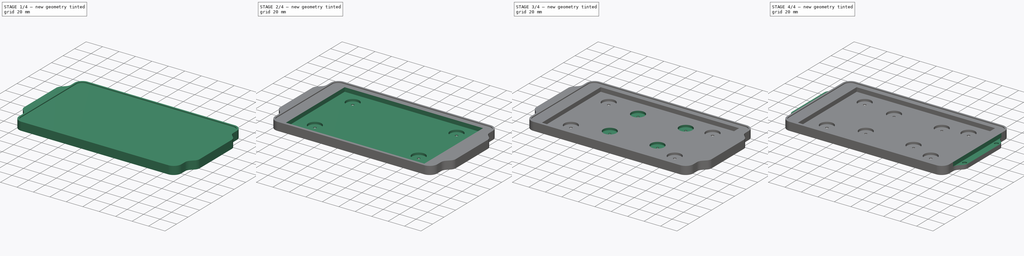
[diagram: build sequence overview — one tinted view per stage of 4, left to right]
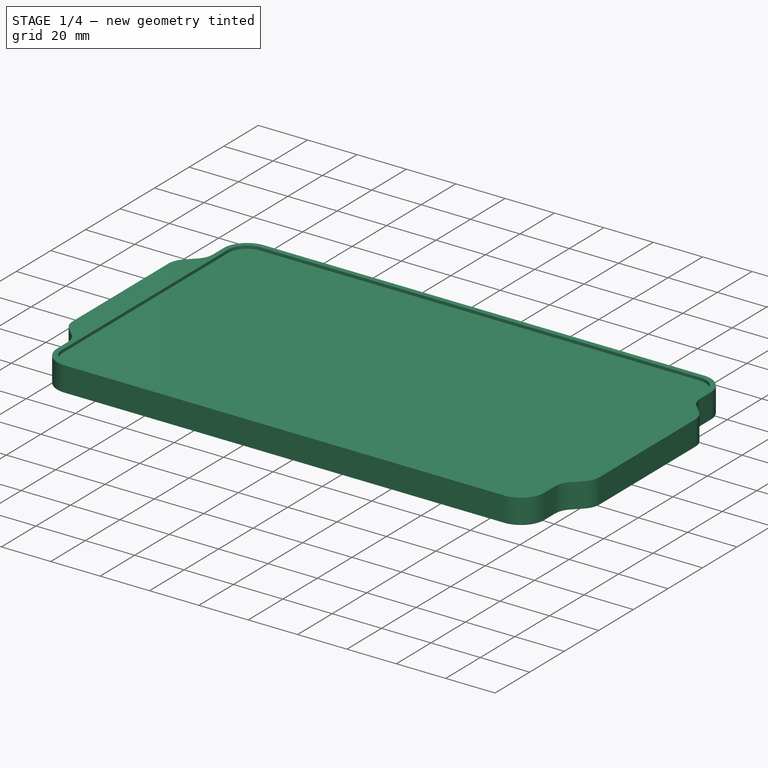
[diagram: stage 1 of 4 — iso view after this stage's code; geometry added in this stage tinted green]
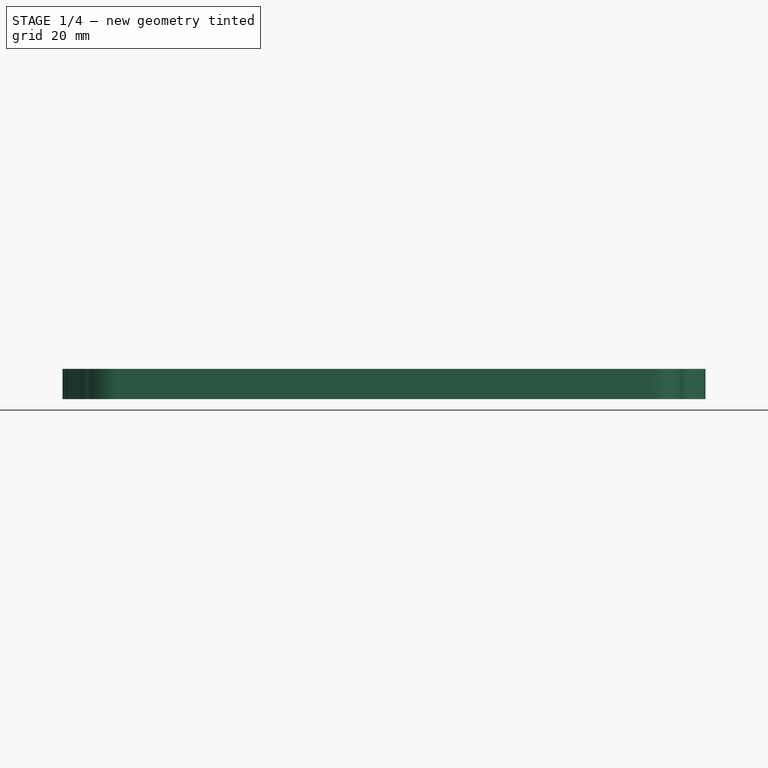
[diagram: stage 1 of 4 — front view after this stage's code; geometry added in this stage tinted green]
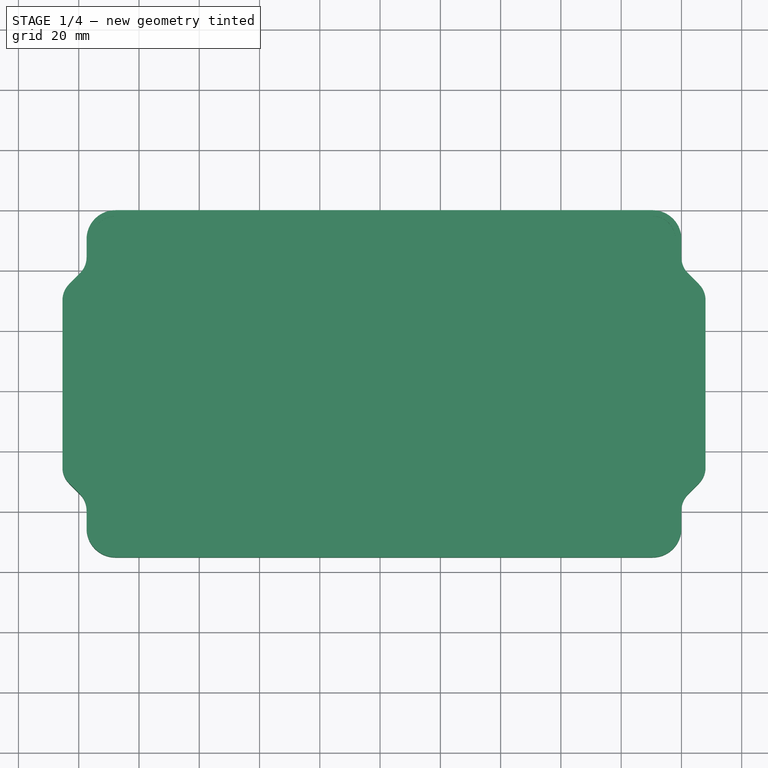
[diagram: stage 1 of 4 — top view after this stage's code; geometry added in this stage tinted green]
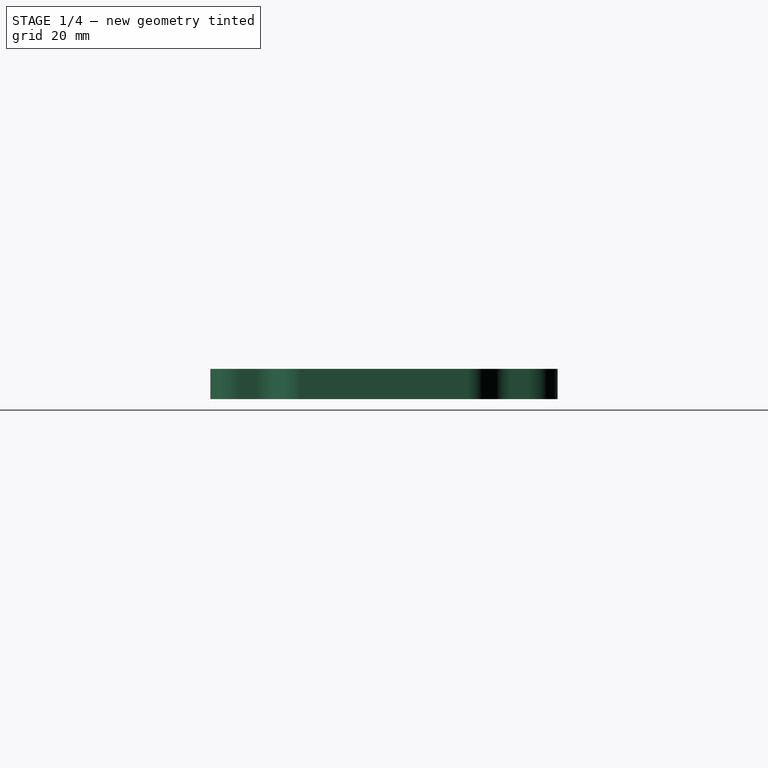
[diagram: stage 1 of 4 — right view after this stage's code; geometry added in this stage tinted green]
FCSTD DOCUMENT  (FreeCAD 0.20R29603 (Git))
Label: Support-Ecran7p-Rpi-Vissage
License: Public Domain
LicenseURL: http://en.wikipedia.org/wiki/Public_domain
objects: Sketcher::SketchObject×8, PartDesign::Pocket×4, PartDesign::LinearPattern×4, PartDesign::Hole×3, PartDesign::MultiTransform×2, PartDesign::Pad×1, PartDesign::Body×1
note: 31 computed .brp shape members not serialized (recipe doc carries the construction recipe); baked Part::Feature solids carry a one-line shape summary decoded from their .brp

FEATURE [Sketcher::SketchObject] Sketch
  FullyConstrained = true
  MapMode = 5
  Support = -> [XY_Plane]
  sketch-geometry (30):
    g0: ArcOfCircle CenterX=-187.8 CenterY=-9.6 CenterZ=0 NormalX=0 NormalY=0 NormalZ=1 AngleXU=0 Radius=9.6 StartAngle=1.5708 EndAngle=3.14159
    g1: LineSegment StartX=-187.8 StartY=0 StartZ=0 EndX=-9.6 EndY=0 EndZ=0
    g2: ArcOfCircle CenterX=-9.6 CenterY=-9.6 CenterZ=0 NormalX=0 NormalY=0 NormalZ=1 AngleXU=0 Radius=9.6 StartAngle=1e-16 EndAngle=1.5708
    g3: ArcOfCircle CenterX=-9.6 CenterY=-105.6 CenterZ=0 NormalX=0 NormalY=0 NormalZ=1 AngleXU=0 Radius=9.6 StartAngle=4.71239 EndAngle=6.28319
    g4: LineSegment StartX=-9.6 StartY=-115.2 StartZ=0 EndX=-187.8 EndY=-115.2 EndZ=0
    g5: ArcOfCircle CenterX=-187.8 CenterY=-105.6 CenterZ=0 NormalX=0 NormalY=0 NormalZ=1 AngleXU=0 Radius=9.6 StartAngle=3.14159 EndAngle=4.71239
    g6: LineSegment StartX=-197.4 StartY=-9.6 StartZ=0 EndX=-197.4 EndY=-15.6 EndZ=0
    g7: LineSegment StartX=-199.626 StartY=-20.974 StartZ=0 EndX=-203.174 EndY=-24.522 EndZ=0
    g8: LineSegment StartX=-203.174 StartY=-90.678 StartZ=0 EndX=-199.626 EndY=-94.226 EndZ=0
    g9: LineSegment StartX=-197.4 StartY=-99.6 StartZ=0 EndX=-197.4 EndY=-105.6 EndZ=0
    g10: LineSegment StartX=0 StartY=-9.6 StartZ=0 EndX=0 EndY=-15.6 EndZ=0
    g11: LineSegment StartX=2.22599 StartY=-20.974 StartZ=0 EndX=5.77401 EndY=-24.522 EndZ=0
    g12: LineSegment StartX=8 StartY=-29.896 StartZ=0 EndX=8 EndY=-85.304 EndZ=0
    g13: LineSegment StartX=5.77401 StartY=-90.678 StartZ=0 EndX=2.22599 EndY=-94.226 EndZ=0
    g14: LineSegment StartX=0 StartY=-99.6 StartZ=0 EndX=0 EndY=-105.6 EndZ=0
    g15: ArcOfCircle CenterX=-205 CenterY=-15.6 CenterZ=0 NormalX=0 NormalY=0 NormalZ=1 AngleXU=0 Radius=7.6 StartAngle=5.49779 EndAngle=6.28319
    g16: GeomPoint X=-197.4 Y=-18.748 Z=0
    g17: ArcOfCircle CenterX=-205 CenterY=-99.6 CenterZ=0 NormalX=0 NormalY=0 NormalZ=1 AngleXU=0 Radius=7.6 StartAngle=0 EndAngle=0.785398
    g18: GeomPoint X=-197.4 Y=-96.452 Z=0
    g19: ArcOfCircle CenterX=-197.8 CenterY=-29.896 CenterZ=0 NormalX=0 NormalY=0 NormalZ=1 AngleXU=0 Radius=7.6 StartAngle=2.35619 EndAngle=3.14159
    g20: ArcOfCircle CenterX=-197.8 CenterY=-85.304 CenterZ=0 NormalX=0 NormalY=0 NormalZ=1 AngleXU=0 Radius=7.6 StartAngle=3.14159 EndAngle=3.92699
    g21: ArcOfCircle CenterX=7.6 CenterY=-15.6 CenterZ=0 NormalX=0 NormalY=0 NormalZ=1 AngleXU=0 Radius=7.6 StartAngle=3.14159 EndAngle=3.92699
    g22: GeomPoint X=0 Y=-18.748 Z=0
    g23: ArcOfCircle CenterX=7.6 CenterY=-99.6 CenterZ=0 NormalX=0 NormalY=0 NormalZ=1 AngleXU=0 Radius=7.6 StartAngle=2.35619 EndAngle=3.14159
    g24: GeomPoint X=0 Y=-96.452 Z=0
    g25: ArcOfCircle CenterX=0.4 CenterY=-29.896 CenterZ=0 NormalX=0 NormalY=0 NormalZ=1 AngleXU=0 Radius=7.6 StartAngle=0 EndAngle=0.785398
    g26: GeomPoint X=8 Y=-26.748 Z=0
    g27: ArcOfCircle CenterX=0.4 CenterY=-85.304 CenterZ=0 NormalX=0 NormalY=0 NormalZ=1 AngleXU=0 Radius=7.6 StartAngle=5.49779 EndAngle=6.28319
    g28: GeomPoint X=8 Y=-88.452 Z=0
    g29: LineSegment StartX=-205.4 StartY=-29.896 StartZ=0 EndX=-205.4 EndY=-85.304 EndZ=0
  constraints (72):
    c: Tangent(g0,g1) = 1.5708
    c: Tangent(g1,g2) = 1.5708
    c: Tangent(g3,g4) = 1.5708
    c: Tangent(g4,g5) = 1.5708
    c: Horizontal(g1)
    c: Horizontal(g4)
    c: Equal(g0,g2)
    c: Equal(g2,g3)
    c: Equal(g3,g5)
    c: Radius(g2) = 9.6
    c: DistanceY(g4,g0) = 115.2
    c: PointOnObject(g1,g-1)
    c: PointOnObject(g2,g-2)
    c: Tangent(g0,g6) = -1.5708
    c: Vertical(g9)
    c: Vertical(g6)
    c: Vertical(g18,g16)
    c: Tangent(g9,g5) = -1.5708
    c: Tangent(g2,g10) = 1.5708
    c: Vertical(g12)
    c: Vertical(g14)
    c: Tangent(g14,g3) = 1.5708
    c: Vertical(g10)
    c: DistanceX(g0,g2) = 197.4
    c: Vertical(g3,g2)
    c: PointOnObject(g16,g6)
    c: PointOnObject(g16,g7)
    c: Tangent(g6,g15) = 1.5708
    c: Tangent(g7,g15) = 1.5708
    c: DistanceY(g6,g6) = 6
    c: PointOnObject(g18,g8)
    c: PointOnObject(g18,g9)
    c: Tangent(g8,g17) = 1.5708
    c: Tangent(g9,g17) = 1.5708
    c: DistanceY(g9,g9) = 6
    c: Tangent(g7,g19) = -1.5708
    c: Tangent(g8,g20) = -1.5708
    c: PointOnObject(g22,g10)
    c: PointOnObject(g22,g11)
    c: Tangent(g10,g21) = -1.5708
    c: Tangent(g11,g21) = -1.5708
    c: PointOnObject(g24,g13)
    c: PointOnObject(g24,g14)
    c: Tangent(g13,g23) = -1.5708
    c: Tangent(g14,g23) = -1.5708
    c: PointOnObject(g26,g11)
    c: PointOnObject(g26,g12)
    c: Tangent(g11,g25) = 1.5708
    c: Tangent(g12,g25) = 1.5708
    c: PointOnObject(g28,g12)
    c: PointOnObject(g28,g13)
    c: Tangent(g12,g27) = 1.5708
    c: Tangent(g13,g27) = 1.5708
    c: Equal(g7,g11)
    c: Angle(g11,g10) = 2.35619
    c: Angle(g14,g13) = 2.35619
    c: Equal(g14,g9)
    c: Angle(g8,g9) = 2.35619
    c: Angle(g6,g7) = 2.35619
    c: Radius(g15) = 7.6
    c: Radius(g19) = 7.6
    c: Radius(g17) = 7.6
    c: Radius(g20) = 7.6
    c: Vertical(g29)
    c: Tangent(g29,g20) = -1.5708
    c: Tangent(g29,g19) = -1.5708
    c: DistanceX(g19,g6) = 8
    c: Radius(g21) = 7.6
    c: Radius(g25) = 7.6
    c: Radius(g23) = 7.6
    c: Radius(g27) = 7.6
    c: DistanceY(g10,g10) = 6
FEATURE [PartDesign::Pad] Pad  label="External Rounded Body"
  Direction = (0,0,1)
  Length = 10
  Length2 = 10
  Profile = -> Sketch
  ReferenceAxis = -> Sketch [N_Axis]
  Type = 0
FEATURE [Sketcher::SketchObject] Sketch001
  FullyConstrained = true
  MapMode = 5
  Placement = pos=(0,0,10) rot=(0,0,1;0rad)
  Support = -> [Pad]
  sketch-geometry (10):
    g0: ArcOfCircle CenterX=-187.8 CenterY=-9.6 CenterZ=0 NormalX=0 NormalY=0 NormalZ=1 AngleXU=0 Radius=7.6 StartAngle=1.5708 EndAngle=3.14159
    g1: LineSegment StartX=-187.8 StartY=-2 StartZ=0 EndX=-9.6 EndY=-2 EndZ=0
    g2: ArcOfCircle CenterX=-9.6 CenterY=-9.6 CenterZ=0 NormalX=0 NormalY=0 NormalZ=1 AngleXU=0 Radius=7.6 StartAngle=1e-16 EndAngle=1.5708
    g3: LineSegment StartX=-2 StartY=-9.6 StartZ=0 EndX=-2 EndY=-105.6 EndZ=0
    g4: ArcOfCircle CenterX=-9.6 CenterY=-105.6 CenterZ=0 NormalX=0 NormalY=0 NormalZ=1 AngleXU=0 Radius=7.6 StartAngle=4.71239 EndAngle=6.28319
    g5: LineSegment StartX=-9.6 StartY=-113.2 StartZ=0 EndX=-187.8 EndY=-113.2 EndZ=0
    g6: ArcOfCircle CenterX=-187.8 CenterY=-105.6 CenterZ=0 NormalX=0 NormalY=0 NormalZ=1 AngleXU=0 Radius=7.6 StartAngle=3.14159 EndAngle=4.71239
    g7: LineSegment StartX=-195.4 StartY=-105.6 StartZ=0 EndX=-195.4 EndY=-9.6 EndZ=0
    g8: GeomPoint X=-195.4 Y=-2 Z=0
    g9: GeomPoint X=-2 Y=-113.2 Z=0
  constraints (24):
    c: Tangent(g0,g1) = 1.5708
    c: Tangent(g1,g2) = 1.5708
    c: Tangent(g2,g3) = 1.5708
    c: Tangent(g3,g4) = 1.5708
    c: Tangent(g4,g5) = 1.5708
    c: Tangent(g5,g6) = 1.5708
    c: Tangent(g6,g7) = 1.5708
    c: Tangent(g7,g0) = 1.5708
    c: Horizontal(g1)
    c: Horizontal(g5)
    c: Vertical(g3)
    c: Vertical(g7)
    c: Equal(g0,g2)
    c: Equal(g2,g4)
    c: Equal(g4,g6)
    c: PointOnObject(g8,g1)
    c: PointOnObject(g8,g7)
    c: PointOnObject(g9,g3)
    c: PointOnObject(g9,g5)
    c: DistanceX(g0,g2) = 193.4
    c: DistanceY(g5,g0) = 111.2
    c: DistanceY(g0,g-1) = 2
    c: Radius(g2) = 7.6
    c: DistanceX(g2,g-1) = 2
FEATURE [PartDesign::Pocket] Pocket  label="Internal Rounded Body"
  BaseFeature = -> Pad
  Direction = (0,0,-1)
  Length = 1.2
  Length2 = 5
  Profile = -> Sketch001
  ReferenceAxis = -> Sketch001 [N_Axis]
  Type = 0
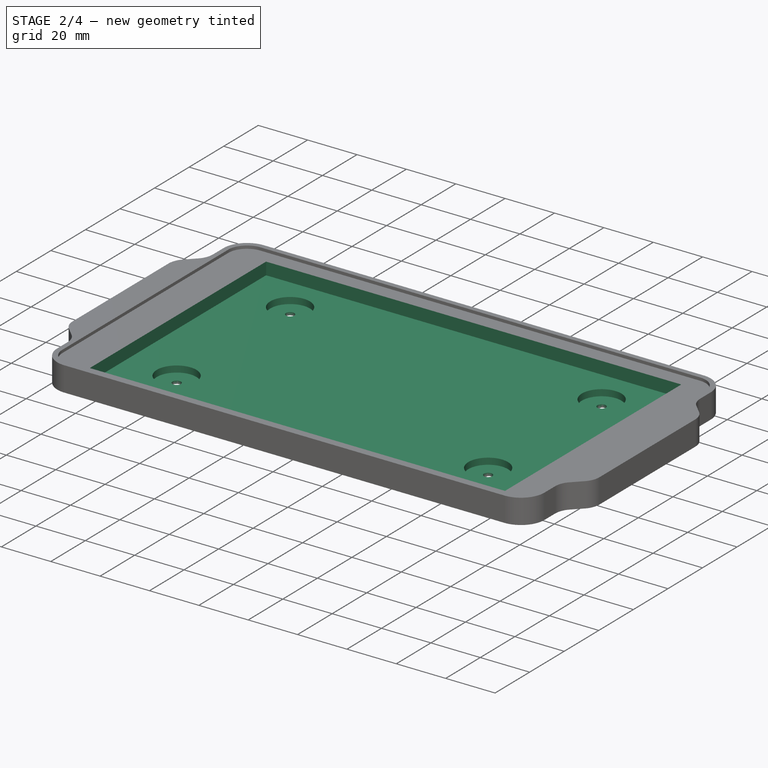
[diagram: stage 2 of 4 — iso view after this stage's code; geometry added in this stage tinted green]
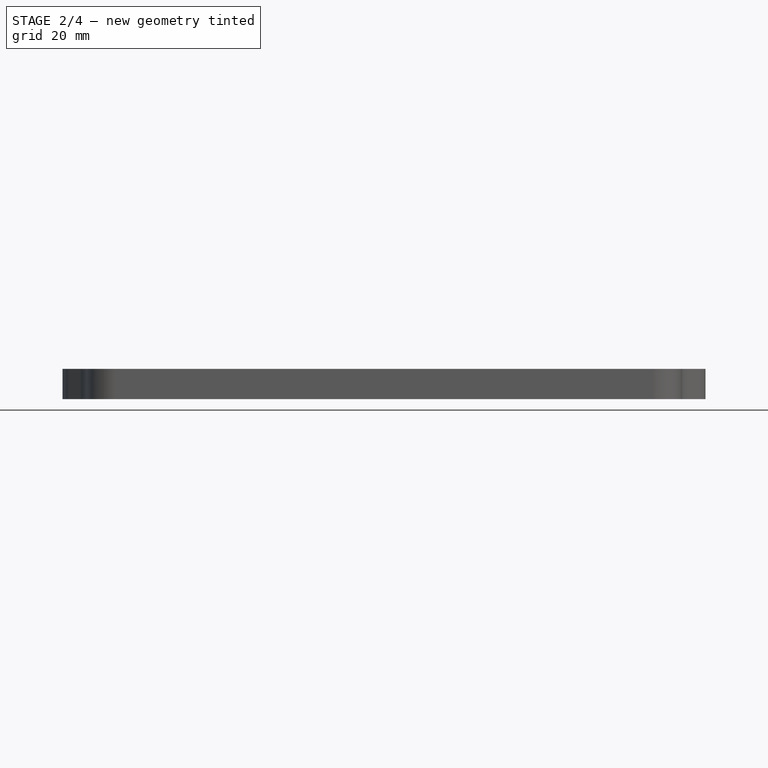
[diagram: stage 2 of 4 — front view after this stage's code; geometry added in this stage tinted green]
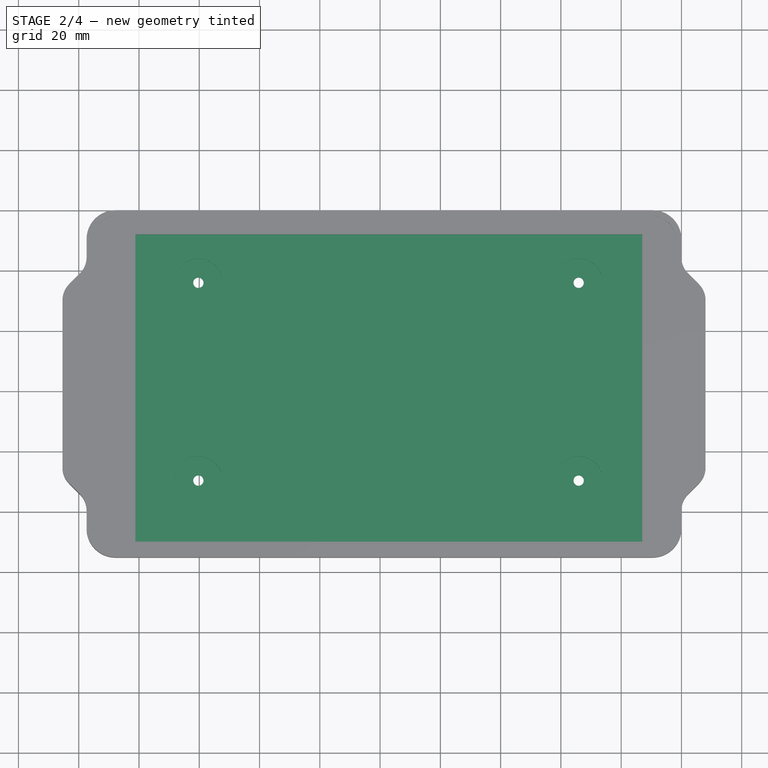
[diagram: stage 2 of 4 — top view after this stage's code; geometry added in this stage tinted green]
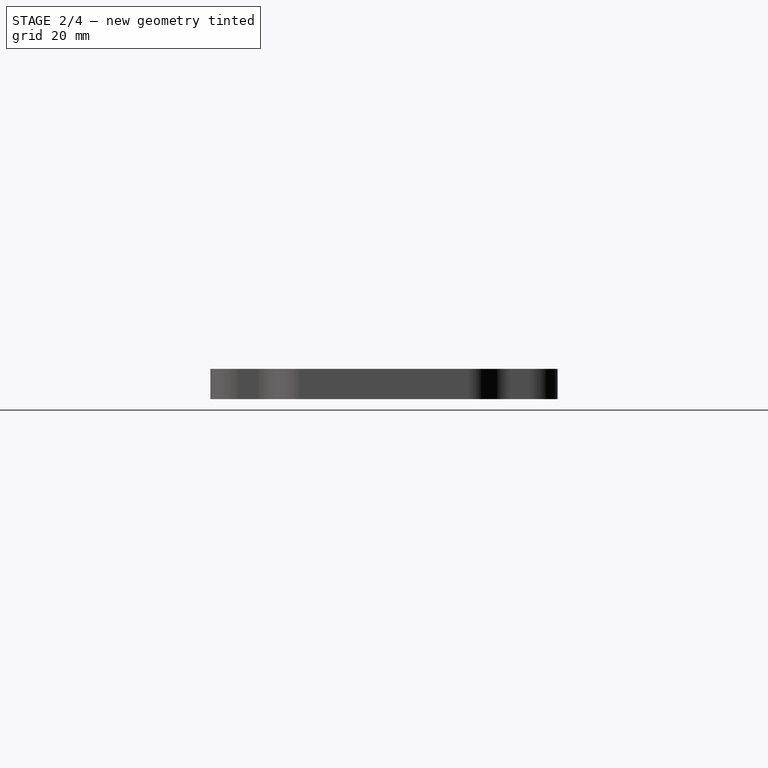
[diagram: stage 2 of 4 — right view after this stage's code; geometry added in this stage tinted green]
FEATURE [Sketcher::SketchObject] Sketch002
  ExternalGeometry = -> [Pocket]
  FullyConstrained = true
  MapMode = 5
  Placement = pos=(0,0,8.8) rot=(0,0,1;0rad)
  Support = -> [Pocket]
  sketch-geometry (4):
    g0: LineSegment StartX=-181.2 StartY=-8 StartZ=0 EndX=-13 EndY=-8 EndZ=0
    g1: LineSegment StartX=-13 StartY=-8 StartZ=0 EndX=-13 EndY=-110 EndZ=0
    g2: LineSegment StartX=-13 StartY=-110 StartZ=0 EndX=-181.2 EndY=-110 EndZ=0
    g3: LineSegment StartX=-181.2 StartY=-110 StartZ=0 EndX=-181.2 EndY=-8 EndZ=0
  constraints (12):
    c: Coincident(g0,g1)
    c: Coincident(g1,g2)
    c: Coincident(g2,g3)
    c: Coincident(g3,g0)
    c: Horizontal(g0)
    c: Horizontal(g2)
    c: Vertical(g1)
    c: Vertical(g3)
    c: DistanceX(g0,g-4) = 11
    c: DistanceY(g0,g-5) = 6
    c: DistanceX(g0,g0) = 168.2
    c: DistanceY(g1,g1) = 102
FEATURE [PartDesign::Pocket] Pocket001  label="Rectangular Cavity"
  BaseFeature = -> Pocket
  Direction = (0,0,-1)
  Length = 5
  Length2 = 5
  Profile = -> Sketch002
  ReferenceAxis = -> Sketch002 [N_Axis]
  Type = 0
FEATURE [Sketcher::SketchObject] Sketch003
  ExternalGeometry = -> [Pocket001]
  FullyConstrained = true
  MapMode = 5
  Placement = pos=(0,0,3.8) rot=(0,0,1;0rad)
  Support = -> [Pocket001]
  sketch-geometry (1):
    g0: Circle CenterX=-34.1 CenterY=-23.95 CenterZ=0 NormalX=0 NormalY=0 NormalZ=1 AngleXU=0 Radius=1.5
  constraints (3):
    c: DistanceY(g0,g-4) = 15.95
    c: DistanceX(g0,g-4) = 21.1
    c: Diameter(g0) = 3
FEATURE [PartDesign::Hole] Hole  label="Screen Mounting Hole"
  BaseFeature = -> Pocket001
  CustomThreadClearance = 0
  Depth = 504.551
  DepthType = 1
  Diameter = 3.4
  DrillForDepth = false
  DrillPoint = 1
  DrillPointAngle = 118
  HoleCutCountersinkAngle = 90
  HoleCutCustomValues = false
  HoleCutDepth = 2.6
  HoleCutDiameter = 16
  HoleCutType = 1
  ModelThread = false
  Profile = -> Sketch003
  Tapered = false
  TaperedAngle = 90
  ThreadClass = 0
  ThreadDepth = 504.551
  ThreadDepthType = 0
  ThreadDirection = 0
  ThreadFit = 0
  ThreadSize = 9
  ThreadType = 1
  Threaded = false
  UseCustomThreadClearance = false
FEATURE [PartDesign::LinearPattern] LinearPattern
  Direction = -> Sketch003 [H_Axis]
  Length = 126.2
  Occurrences = 2
  Reversed = true
FEATURE [PartDesign::LinearPattern] LinearPattern001
  Direction = -> Y_Axis
  Length = 65.65
  Occurrences = 2
  Reversed = true
FEATURE [PartDesign::MultiTransform] MultiTransform  label="Screen Mounting Holes"
  BaseFeature = -> Hole
  Originals = -> [Hole]
  Transformations = -> [LinearPattern,LinearPattern001]
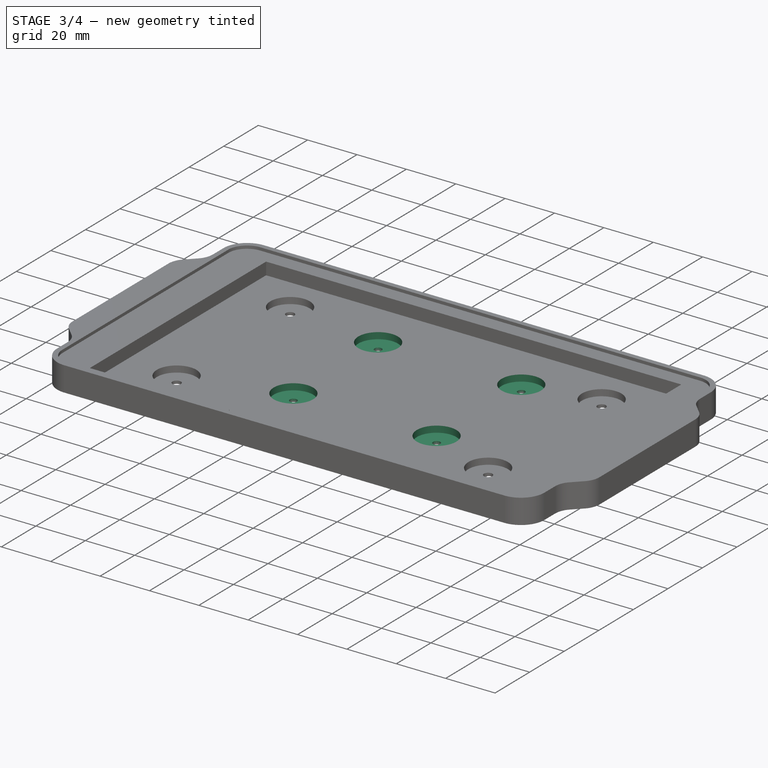
[diagram: stage 3 of 4 — iso view after this stage's code; geometry added in this stage tinted green]
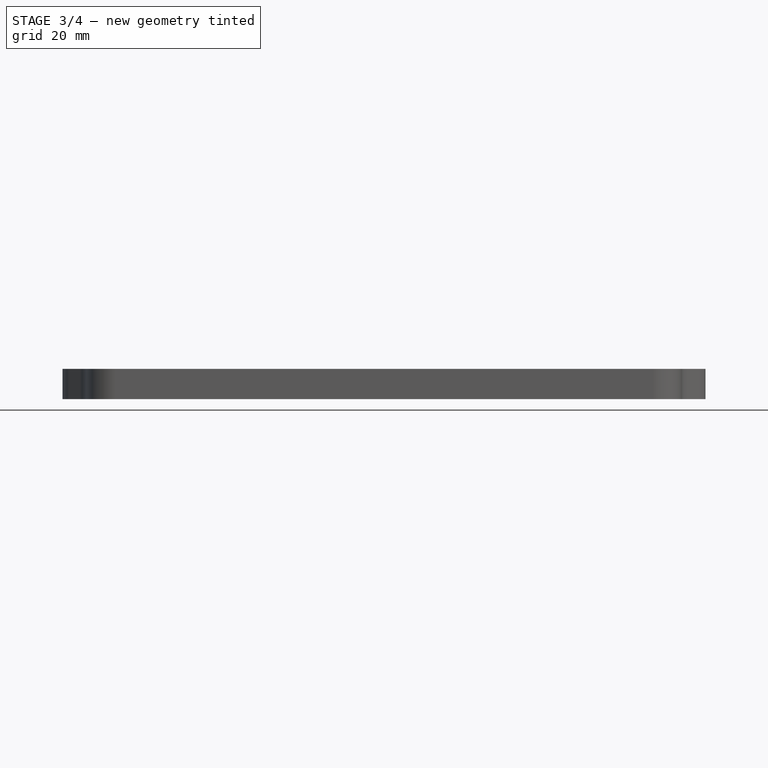
[diagram: stage 3 of 4 — front view after this stage's code; geometry added in this stage tinted green]
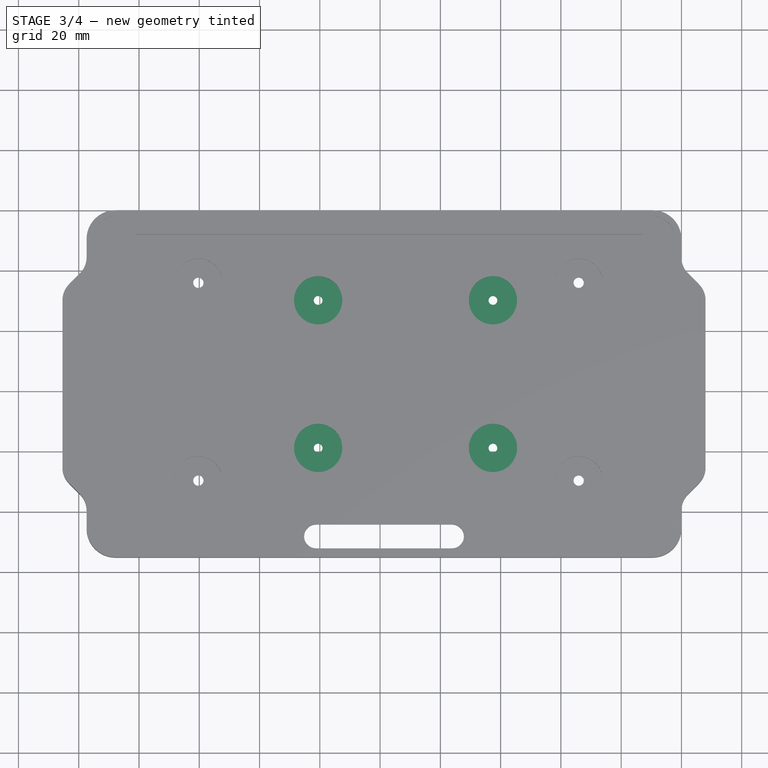
[diagram: stage 3 of 4 — top view after this stage's code; geometry added in this stage tinted green]
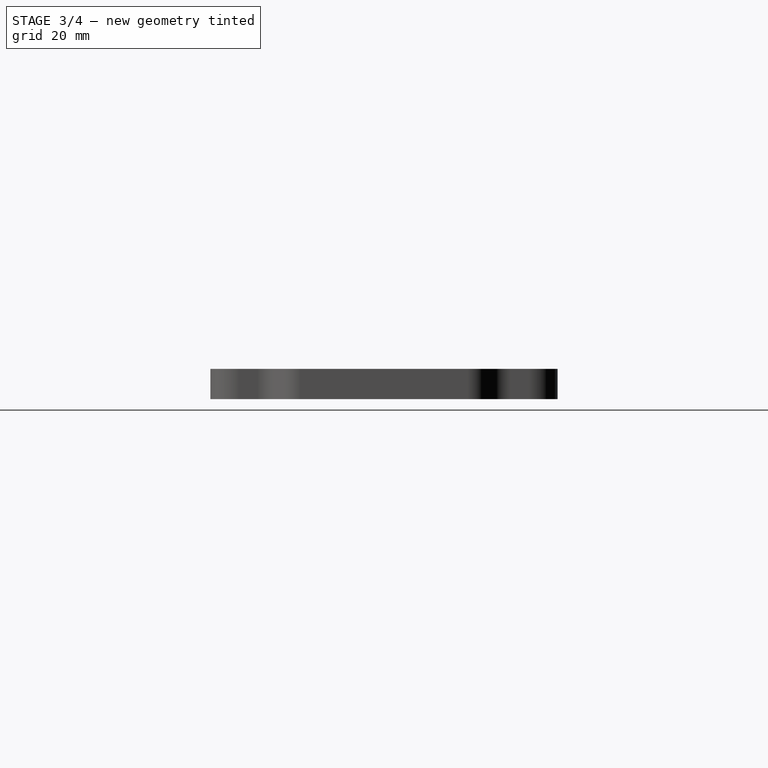
[diagram: stage 3 of 4 — right view after this stage's code; geometry added in this stage tinted green]
FEATURE [Sketcher::SketchObject] Sketch004
  ExternalGeometry = -> [MultiTransform]
  FullyConstrained = true
  MapMode = 5
  Placement = pos=(0,0,3.8) rot=(0,0,1;0rad)
  Support = -> [MultiTransform]
  sketch-geometry (1):
    g0: Circle CenterX=-62.55 CenterY=-29.8 CenterZ=0 NormalX=0 NormalY=0 NormalZ=1 AngleXU=0 Radius=1.25
  constraints (3):
    c: Diameter(g0) = 2.5
    c: DistanceX(g0,g-5) = 28.45
    c: DistanceY(g0,g-5) = 5.85
FEATURE [PartDesign::Hole] Hole001  label="RPi Mounting Hole"
  BaseFeature = -> MultiTransform
  CustomThreadClearance = 0
  Depth = 25
  DepthType = 0
  Diameter = 2.9
  DrillForDepth = false
  DrillPoint = 1
  DrillPointAngle = 118
  HoleCutCountersinkAngle = 90
  HoleCutCustomValues = false
  HoleCutDepth = 2.6
  HoleCutDiameter = 16
  HoleCutType = 1
  ModelThread = false
  Profile = -> Sketch004
  Tapered = false
  TaperedAngle = 90
  ThreadClass = 0
  ThreadDepth = 25
  ThreadDepthType = 0
  ThreadDirection = 0
  ThreadFit = 0
  ThreadSize = 8
  ThreadType = 1
  Threaded = false
  UseCustomThreadClearance = false
FEATURE [PartDesign::LinearPattern] LinearPattern002
  Direction = -> X_Axis
  Length = 58
  Occurrences = 2
  Reversed = true
FEATURE [PartDesign::LinearPattern] LinearPattern003
  Direction = -> Y_Axis
  Length = 49
  Occurrences = 2
  Reversed = true
FEATURE [PartDesign::MultiTransform] MultiTransform001  label="RPi Mounting Holes"
  BaseFeature = -> Hole001
  Originals = -> [Hole001]
  Transformations = -> [LinearPattern002,LinearPattern003]
FEATURE [Sketcher::SketchObject] Sketch005
  ExternalGeometry = -> [MultiTransform001]
  FullyConstrained = true
  MapMode = 5
  Placement = pos=(0,0,0) rot=(1,0,0;3.14159rad)
  Support = -> [MultiTransform001]
  sketch-geometry (6):
    g0: ArcOfCircle CenterX=-121.2 CenterY=108.2 CenterZ=0 NormalX=0 NormalY=0 NormalZ=1 AngleXU=0 Radius=4 StartAngle=1.5708 EndAngle=4.71239
    g1: ArcOfCircle CenterX=-76.2 CenterY=108.2 CenterZ=0 NormalX=0 NormalY=0 NormalZ=1 AngleXU=0 Radius=4 StartAngle=4.71239 EndAngle=7.85398
    g2: LineSegment StartX=-121.2 StartY=104.2 StartZ=0 EndX=-76.2 EndY=104.2 EndZ=0
    g3: LineSegment StartX=-76.2 StartY=112.2 StartZ=0 EndX=-121.2 EndY=112.2 EndZ=0
    g4: LineSegment StartX=-187.8 StartY=115.2 StartZ=0 EndX=-121.2 EndY=112.2 EndZ=0
    g5: LineSegment StartX=-76.2 StartY=112.2 StartZ=0 EndX=-9.6 EndY=115.2 EndZ=0
  constraints (14):
    c: Tangent(g0,g2) = -1.5708
    c: Tangent(g2,g1) = -1.5708
    c: Tangent(g1,g3) = -1.5708
    c: Tangent(g3,g0) = -1.5708
    c: Equal(g0,g1)
    c: Horizontal(g2)
    c: DistanceX(g0,g1) = 45
    c: DistanceY(g1,g1) = 8
    c: DistanceY(g0,g-4) = 3
    c: Coincident(g4,g-4)
    c: Coincident(g4,g0)
    c: Coincident(g5,g1)
    c: Coincident(g5,g-4)
    c: Equal(g4,g5)
FEATURE [PartDesign::Pocket] Pocket002  label="Flat Ribbon Slot"
  BaseFeature = -> MultiTransform001
  Direction = (0,0,1)
  Length = 5
  Length2 = 5
  Profile = -> Sketch005
  ReferenceAxis = -> Sketch005 [N_Axis]
  Type = 1
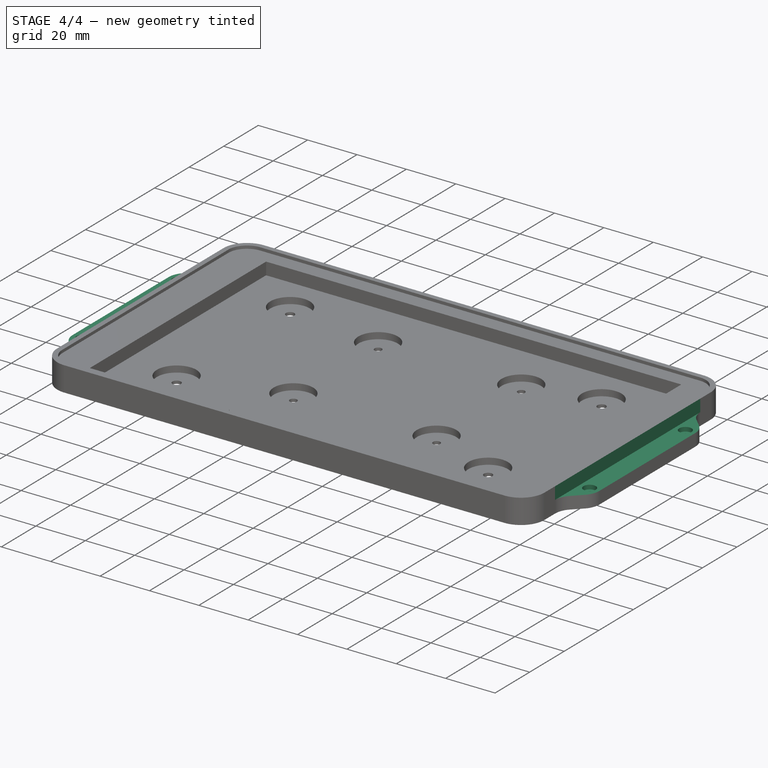
[diagram: stage 4 of 4 — iso view after this stage's code; geometry added in this stage tinted green]
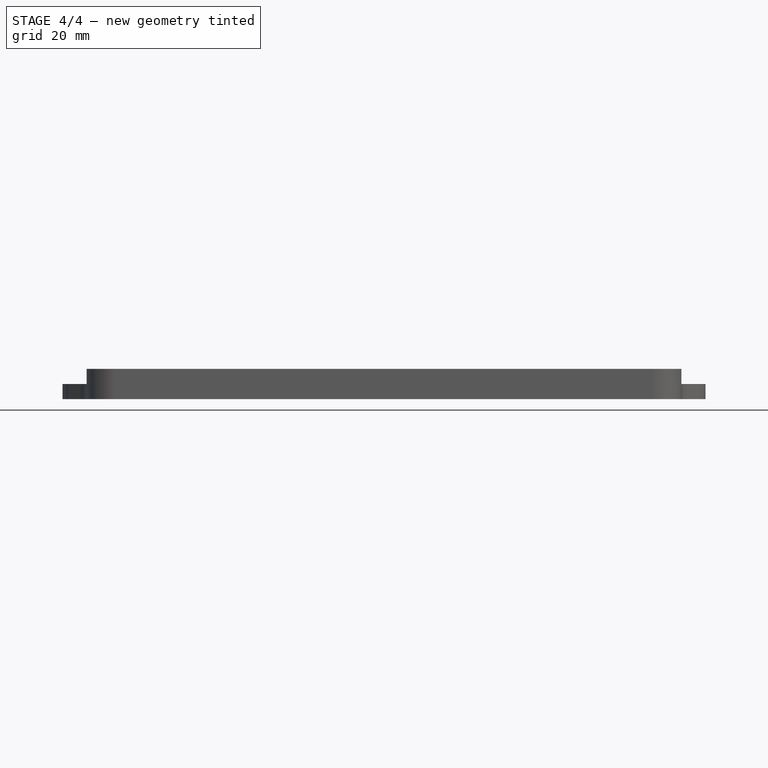
[diagram: stage 4 of 4 — front view after this stage's code; geometry added in this stage tinted green]
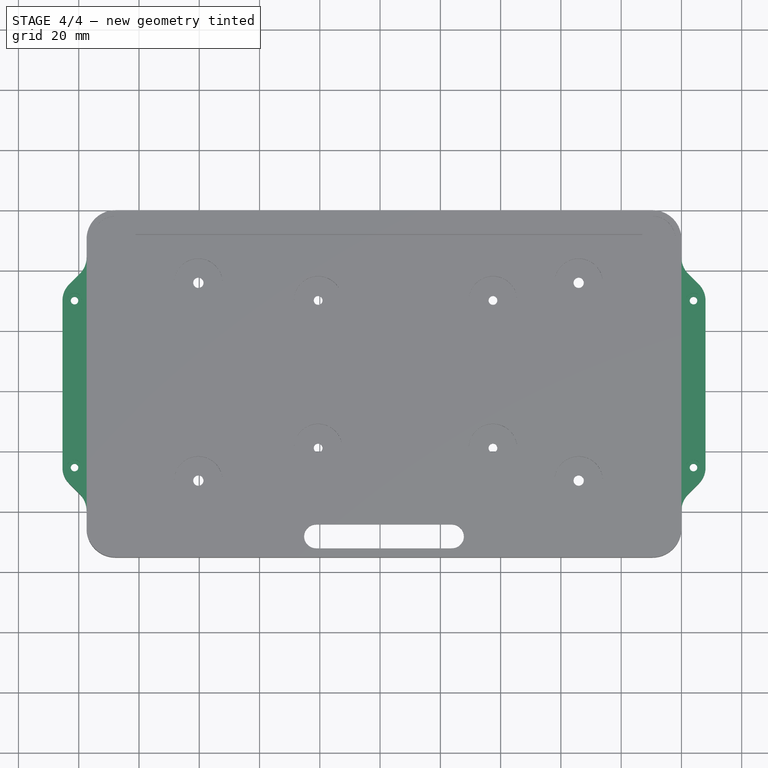
[diagram: stage 4 of 4 — top view after this stage's code; geometry added in this stage tinted green]
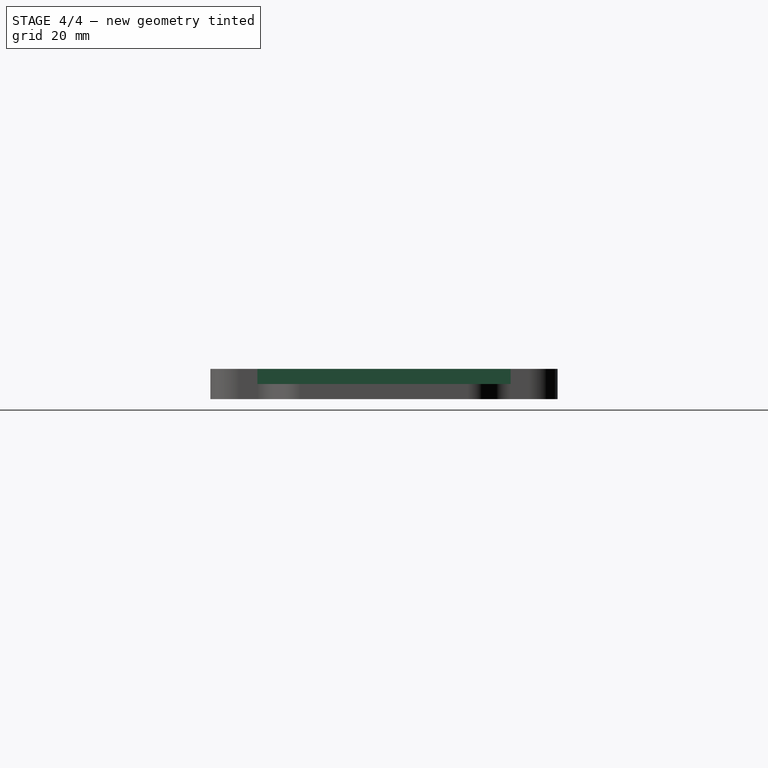
[diagram: stage 4 of 4 — right view after this stage's code; geometry added in this stage tinted green]
FEATURE [Sketcher::SketchObject] Sketch006
  ExternalGeometry = -> [Pocket002]
  FullyConstrained = true
  MapMode = 5
  Placement = pos=(0,0,10) rot=(0,0,1;0rad)
  Support = -> [Pocket002]
  sketch-geometry (8):
    g0: LineSegment StartX=-197.4 StartY=-15.6 StartZ=0 EndX=-205.4 EndY=-15.6 EndZ=0
    g1: LineSegment StartX=-205.4 StartY=-15.6 StartZ=0 EndX=-205.4 EndY=-99.6 EndZ=0
    g2: LineSegment StartX=-205.4 StartY=-99.6 StartZ=0 EndX=-197.4 EndY=-99.6 EndZ=0
    g3: LineSegment StartX=-197.4 StartY=-99.6 StartZ=0 EndX=-197.4 EndY=-15.6 EndZ=0
    g4: LineSegment StartX=0 StartY=-15.6 StartZ=0 EndX=8 EndY=-15.6 EndZ=0
    g5: LineSegment StartX=8 StartY=-15.6 StartZ=0 EndX=8 EndY=-99.6 EndZ=0
    g6: LineSegment StartX=8 StartY=-99.6 StartZ=0 EndX=0 EndY=-99.6 EndZ=0
    g7: LineSegment StartX=0 StartY=-99.6 StartZ=0 EndX=0 EndY=-15.6 EndZ=0
  constraints (18):
    c: Coincident(g0,g1)
    c: Coincident(g1,g2)
    c: Coincident(g2,g3)
    c: Coincident(g3,g0)
    c: Horizontal(g0)
    c: Horizontal(g2)
    c: Coincident(g0,g-3)
    c: Coincident(g-4,g2)
    c: Tangent(g1,g-5)
    c: Coincident(g4,g5)
    c: Coincident(g5,g6)
    c: Coincident(g6,g7)
    c: Coincident(g7,g4)
    c: Horizontal(g4)
    c: Horizontal(g6)
    c: Coincident(g4,g-6)
    c: Coincident(g6,g-7)
    c: Tangent(g5,g-8)
FEATURE [PartDesign::Pocket] Pocket003  label="Oreilles Fixation"
  BaseFeature = -> Pocket002
  Direction = (0,0,-1)
  Length = 5
  Length2 = 5
  Profile = -> Sketch006
  ReferenceAxis = -> Sketch006 [N_Axis]
  Type = 0
FEATURE [Sketcher::SketchObject] Sketch007
  ExternalGeometry = -> [Pocket003]
  FullyConstrained = true
  MapMode = 5
  Placement = pos=(0,0,5) rot=(0,0,1;0rad)
  Support = -> [Pocket003]
  sketch-geometry (4):
    g0: Circle CenterX=-201.4 CenterY=-29.896 CenterZ=0 NormalX=0 NormalY=0 NormalZ=1 AngleXU=0 Radius=1.25
    g1: Circle CenterX=-201.4 CenterY=-85.304 CenterZ=0 NormalX=0 NormalY=0 NormalZ=1 AngleXU=0 Radius=1.25
    g2: Circle CenterX=4 CenterY=-29.896 CenterZ=0 NormalX=0 NormalY=0 NormalZ=1 AngleXU=0 Radius=1.25
    g3: Circle CenterX=4 CenterY=-85.304 CenterZ=0 NormalX=0 NormalY=0 NormalZ=1 AngleXU=0 Radius=1.25
  constraints (12):
    c: Diameter(g0) = 2.5
    c: Diameter(g1) = 2.5
    c: Diameter(g2) = 2.5
    c: Diameter(g3) = 2.5
    c: Vertical(g0,g1)
    c: Horizontal(g0,g2)
    c: Horizontal(g1,g3)
    c: Vertical(g2,g3)
    c: Horizontal(g0,g-3)
    c: Horizontal(g-3,g1)
    c: DistanceX(g-3,g1) = 4
    c: DistanceX(g2,g-4) = 4
FEATURE [PartDesign::Hole] Hole002
  BaseFeature = -> Pocket003
  CustomThreadClearance = 0
  Depth = 490.284
  DepthType = 1
  Diameter = 2.5
  DrillForDepth = false
  DrillPoint = 1
  DrillPointAngle = 118
  HoleCutCountersinkAngle = 90
  HoleCutCustomValues = false
  HoleCutDepth = 1.7
  HoleCutDiameter = 5
  HoleCutType = 1
  ModelThread = false
  Profile = -> Sketch007
  Tapered = false
  TaperedAngle = 90
  ThreadClass = 0
  ThreadDepth = 490.284
  ThreadDepthType = 0
  ThreadDirection = 0
  ThreadFit = 0
  ThreadSize = 0
  ThreadType = 0
  Threaded = false
  UseCustomThreadClearance = false
FEATURE [PartDesign::Body] Body
  Group = -> [Sketch,Pad,Sketch001,Pocket,Sketch002,Pocket001,Sketch003,Hole,MultiTransform,LinearPattern,LinearPattern001,Sketch004,Hole001,MultiTransform001,LinearPattern002,LinearPattern003,Sketch005,Pocket002,Sketch006,Pocket003,Sketch007,Hole002]
  Origin = -> Origin
  Tip = -> Hole002
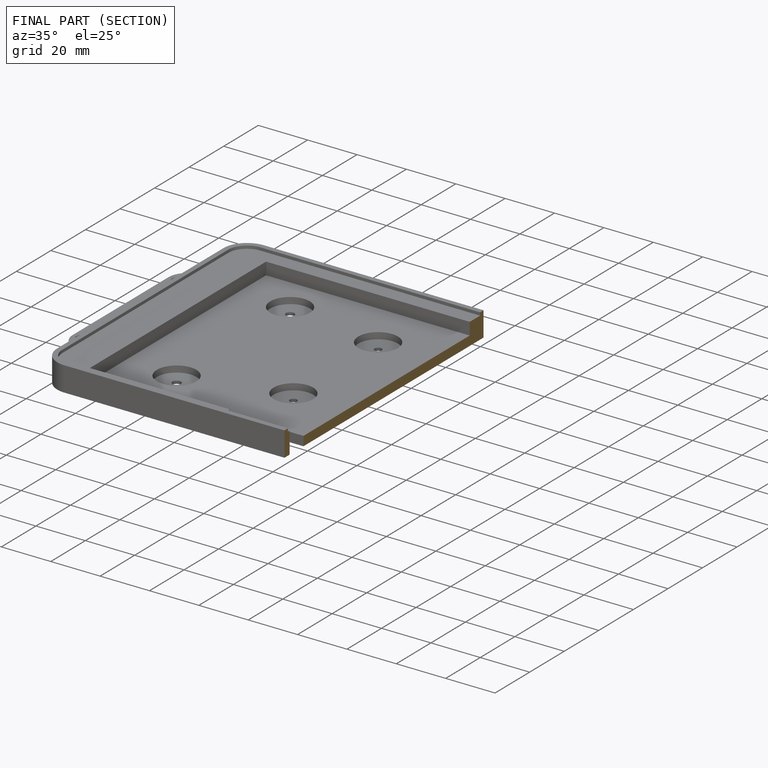
[diagram: finished part — half-section view (interior)]
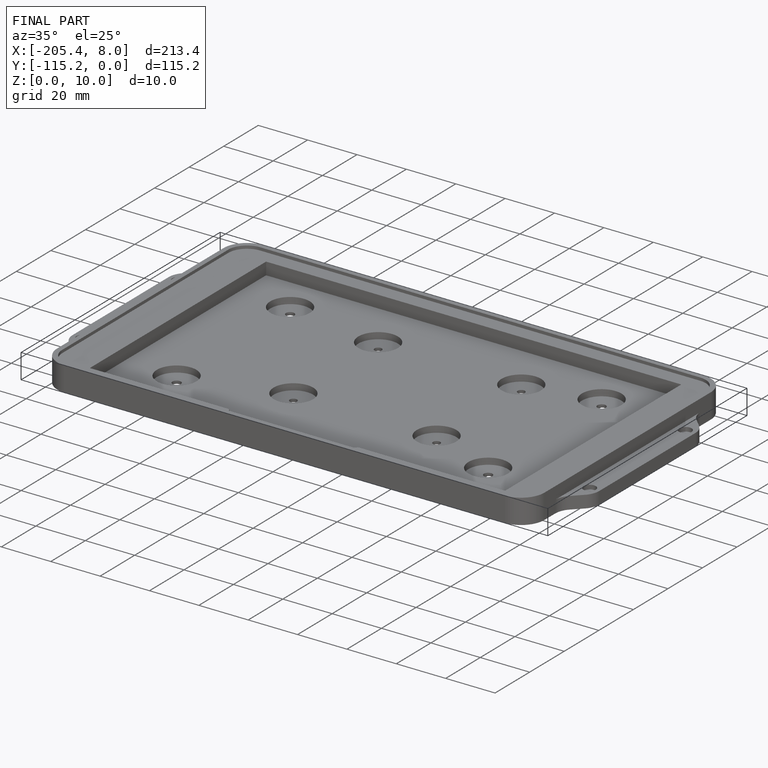
[diagram: finished part — iso view with bounding-box wireframe]
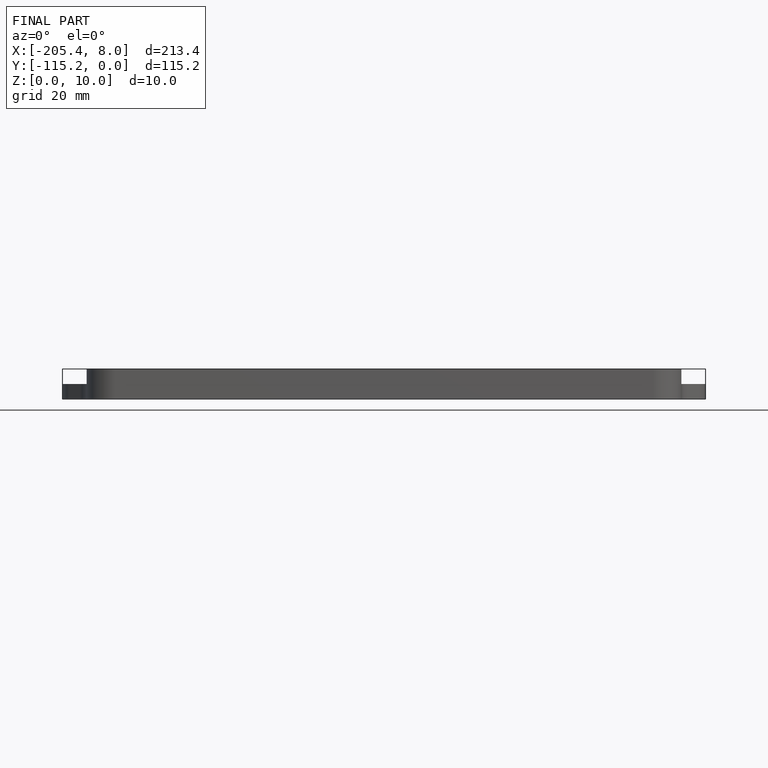
[diagram: finished part — front view with bounding-box wireframe]
